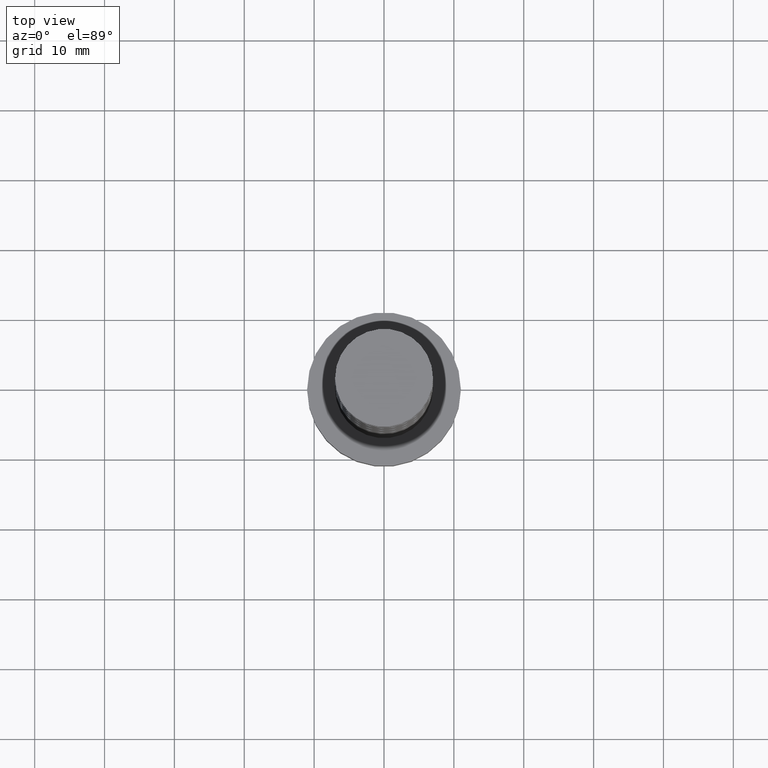
[diagram: clean part render]
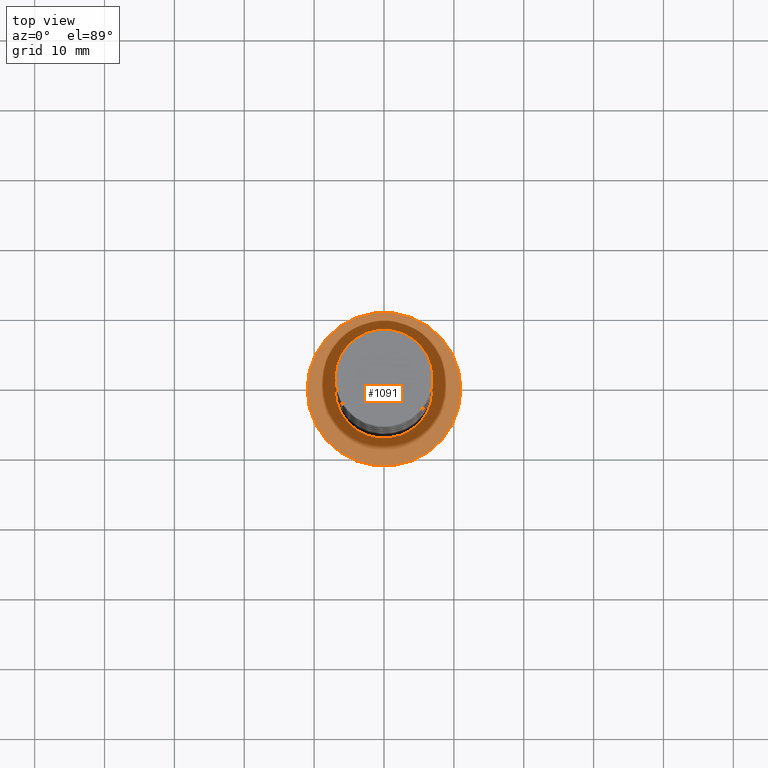
[diagram: same view with one face highlighted and labeled with its STEP entity id]
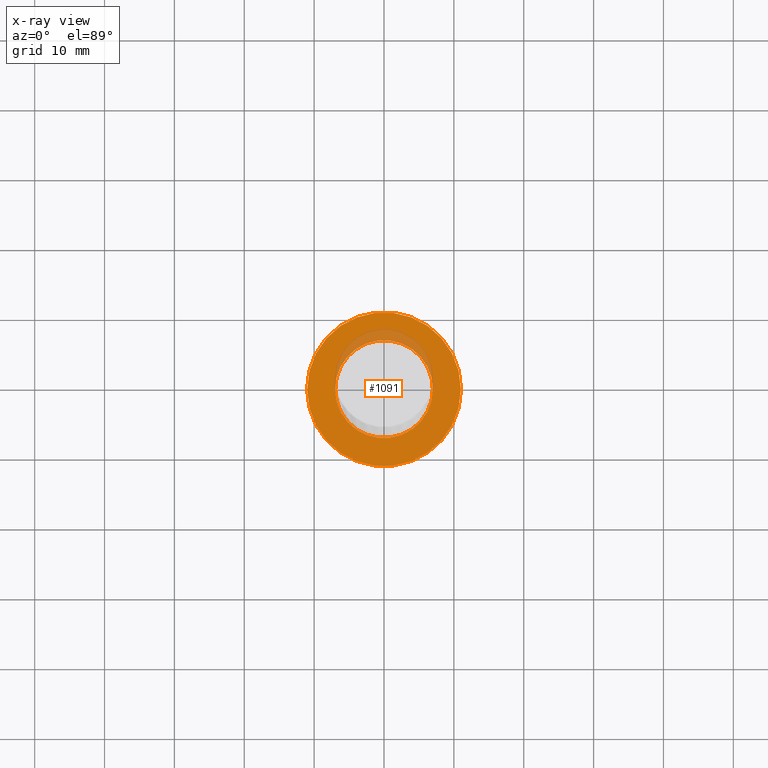
[diagram: x-ray of the same camera — body ghosted, the highlighted face saturated]
A machine part, top view. The second image highlights one B-rep face of the part: STEP entity #1091.
The next image is the same camera in x-ray: the body ghosted, the highlighted face saturated — about 10% of this face is hidden behind the body in this view.
In plain terms, the highlighted planar face has unit normal (0, 0, 1).
Its self-contained STEP definition (entity closure, byte-faithful):
#16 = EDGE_CURVE ( 'NONE', #440, #122, #243, .T. ) ;
#27 = CARTESIAN_POINT ( 'NONE',  ( 0.000000000000000000, 0.000000000000000000, 7.000000000000000000 ) ) ;
#95 = EDGE_LOOP ( 'NONE', ( #225, #444 ) ) ;
#110 = FACE_OUTER_BOUND ( 'NONE', #1028, .T. ) ;
#122 = VERTEX_POINT ( 'NONE', #1044 ) ;
#135 = DIRECTION ( 'NONE',  ( 1.000000000000000000, 0.000000000000000000, -0.000000000000000000 ) ) ;
#197 = CARTESIAN_POINT ( 'NONE',  ( 0.000000000000000000, 0.000000000000000000, 7.000000000000000000 ) ) ;
#201 = AXIS2_PLACEMENT_3D ( 'NONE', #27, #722, #1045 ) ;
#217 = DIRECTION ( 'NONE',  ( 1.000000000000000000, 0.000000000000000000, 0.000000000000000000 ) ) ;
#225 = ORIENTED_EDGE ( 'NONE', *, *, #1244, .F. ) ;
#243 = CIRCLE ( 'NONE', #1251, 11.00000000000000000 ) ;
#367 = EDGE_CURVE ( 'NONE', #1340, #457, #846, .T. ) ;
#426 = CARTESIAN_POINT ( 'NONE',  ( 0.000000000000000000, 0.000000000000000000, 7.000000000000000000 ) ) ;
#433 = DIRECTION ( 'NONE',  ( 0.000000000000000000, 0.000000000000000000, 1.000000000000000000 ) ) ;
#440 = VERTEX_POINT ( 'NONE', #1298 ) ;
#444 = ORIENTED_EDGE ( 'NONE', *, *, #367, .F. ) ;
#448 = CARTESIAN_POINT ( 'NONE',  ( 7.000000000000000000, 8.572527594031471218E-16, 7.000000000000000000 ) ) ;
#457 = VERTEX_POINT ( 'NONE', #1068 ) ;
#466 = DIRECTION ( 'NONE',  ( 0.000000000000000000, 0.000000000000000000, 1.000000000000000000 ) ) ;
#480 = EDGE_CURVE ( 'NONE', #122, #440, #489, .T. ) ;
#489 = CIRCLE ( 'NONE', #803, 11.00000000000000000 ) ;
#542 = ORIENTED_EDGE ( 'NONE', *, *, #16, .T. ) ;
#557 = DIRECTION ( 'NONE',  ( 0.000000000000000000, 0.000000000000000000, 1.000000000000000000 ) ) ;
#722 = DIRECTION ( 'NONE',  ( 0.000000000000000000, 0.000000000000000000, 1.000000000000000000 ) ) ;
#803 = AXIS2_PLACEMENT_3D ( 'NONE', #1413, #838, #1152 ) ;
#817 = PLANE ( 'NONE',  #823 ) ;
#823 = AXIS2_PLACEMENT_3D ( 'NONE', #1282, #466, #135 ) ;
#838 = DIRECTION ( 'NONE',  ( 0.000000000000000000, 0.000000000000000000, 1.000000000000000000 ) ) ;
#846 = CIRCLE ( 'NONE', #201, 7.000000000000000000 ) ;
#1010 = DIRECTION ( 'NONE',  ( 1.000000000000000000, 0.000000000000000000, 0.000000000000000000 ) ) ;
#1028 = EDGE_LOOP ( 'NONE', ( #1256, #542 ) ) ;
#1044 = CARTESIAN_POINT ( 'NONE',  ( -11.00000000000000000, 0.000000000000000000, 7.000000000000000000 ) ) ;
#1045 = DIRECTION ( 'NONE',  ( 1.000000000000000000, 0.000000000000000000, 0.000000000000000000 ) ) ;
#1065 = AXIS2_PLACEMENT_3D ( 'NONE', #426, #433, #217 ) ;
#1068 = CARTESIAN_POINT ( 'NONE',  ( -7.000000000000000000, 0.000000000000000000, 7.000000000000000000 ) ) ;
#1091 = ADVANCED_FACE ( 'NONE', ( #1367, #110 ), #817, .T. ) ;
#1152 = DIRECTION ( 'NONE',  ( 1.000000000000000000, 0.000000000000000000, 0.000000000000000000 ) ) ;
#1244 = EDGE_CURVE ( 'NONE', #457, #1340, #1286, .T. ) ;
#1251 = AXIS2_PLACEMENT_3D ( 'NONE', #197, #557, #1010 ) ;
#1256 = ORIENTED_EDGE ( 'NONE', *, *, #480, .T. ) ;
#1282 = CARTESIAN_POINT ( 'NONE',  ( 0.000000000000000000, 0.000000000000000000, 7.000000000000000000 ) ) ;
#1286 = CIRCLE ( 'NONE', #1065, 7.000000000000000000 ) ;
#1298 = CARTESIAN_POINT ( 'NONE',  ( 11.00000000000000000, 1.347111479062088405E-15, 7.000000000000000000 ) ) ;
#1340 = VERTEX_POINT ( 'NONE', #448 ) ;
#1367 = FACE_BOUND ( 'NONE', #95, .T. ) ;
#1413 = CARTESIAN_POINT ( 'NONE',  ( 0.000000000000000000, 0.000000000000000000, 7.000000000000000000 ) ) ;